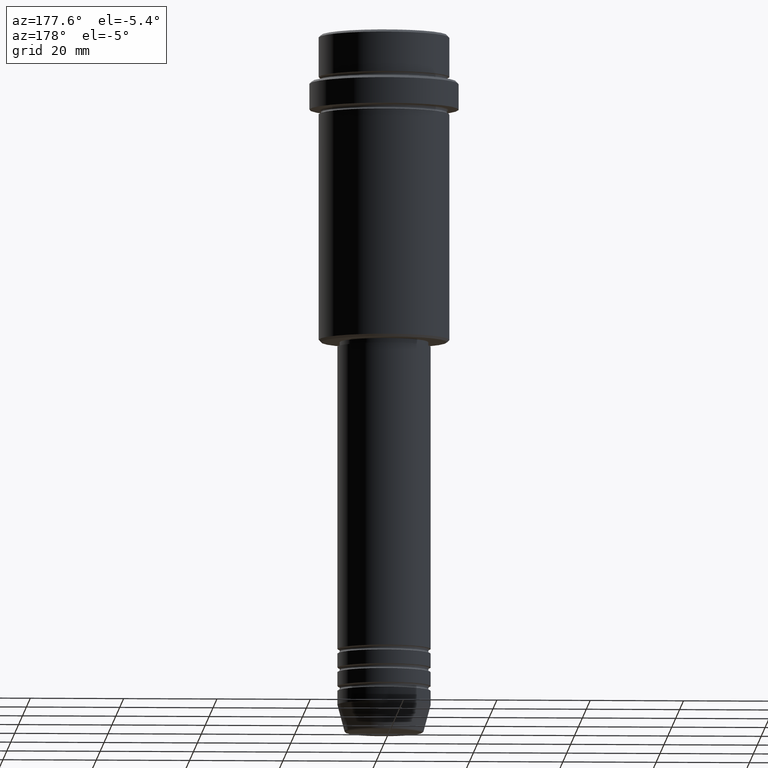
[diagram: clean part render]
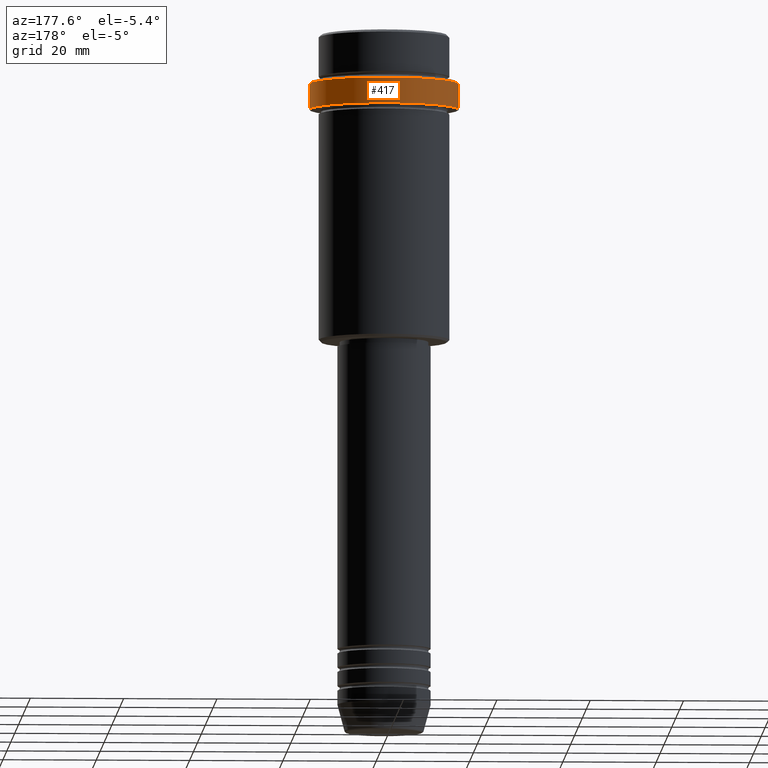
[diagram: same view with one face highlighted and labeled with its STEP entity id]
A machine part, auxiliary view. The second image highlights one B-rep face of the part: STEP entity #417.
In plain terms, the highlighted cylindrical surface (partial cylindrical patch) has radius 16 mm, axis along (-0, -0, 1).
Its self-contained STEP definition (entity closure, byte-faithful):
#19 = DIRECTION ( 'NONE',  ( -0.000000000000000000, -0.000000000000000000, 1.000000000000000000 ) ) ;
#61 = DIRECTION ( 'NONE',  ( 0.000000000000000000, 0.000000000000000000, -1.000000000000000000 ) ) ;
#87 = EDGE_CURVE ( 'NONE', #1394, #1410, #491, .T. ) ;
#125 = DIRECTION ( 'NONE',  ( 1.000000000000000000, 0.000000000000000000, 0.000000000000000000 ) ) ;
#138 = LINE ( 'NONE', #1326, #913 ) ;
#192 = AXIS2_PLACEMENT_3D ( 'NONE', #1132, #61, #608 ) ;
#208 = DIRECTION ( 'NONE',  ( -0.000000000000000000, -0.000000000000000000, 1.000000000000000000 ) ) ;
#215 = DIRECTION ( 'NONE',  ( 1.000000000000000000, 0.000000000000000000, 0.000000000000000000 ) ) ;
#231 = CARTESIAN_POINT ( 'NONE',  ( 15.99999999999998579, 0.000000000000000000, -10.49999999999997158 ) ) ;
#283 = EDGE_LOOP ( 'NONE', ( #1265, #621, #426, #395 ) ) ;
#313 = CYLINDRICAL_SURFACE ( 'NONE', #845, 15.99999999999998579 ) ;
#323 = VERTEX_POINT ( 'NONE', #1263 ) ;
#333 = CARTESIAN_POINT ( 'NONE',  ( 15.99999999999998579, 0.000000000000000000, -16.00000000000000000 ) ) ;
#388 = CARTESIAN_POINT ( 'NONE',  ( 0.000000000000000000, 0.000000000000000000, -16.00000000000000000 ) ) ;
#395 = ORIENTED_EDGE ( 'NONE', *, *, #87, .F. ) ;
#417 = ADVANCED_FACE ( 'NONE', ( #851 ), #313, .T. ) ;
#426 = ORIENTED_EDGE ( 'NONE', *, *, #576, .T. ) ;
#457 = EDGE_CURVE ( 'NONE', #558, #323, #138, .T. ) ;
#491 = LINE ( 'NONE', #711, #1001 ) ;
#541 = CIRCLE ( 'NONE', #813, 15.99999999999998579 ) ;
#558 = VERTEX_POINT ( 'NONE', #1358 ) ;
#576 = EDGE_CURVE ( 'NONE', #323, #1410, #737, .T. ) ;
#608 = DIRECTION ( 'NONE',  ( 1.000000000000000000, 0.000000000000000000, 0.000000000000000000 ) ) ;
#621 = ORIENTED_EDGE ( 'NONE', *, *, #457, .T. ) ;
#632 = EDGE_CURVE ( 'NONE', #1394, #558, #541, .T. ) ;
#711 = CARTESIAN_POINT ( 'NONE',  ( 15.99999999999998579, 0.000000000000000000, 0.000000000000000000 ) ) ;
#737 = CIRCLE ( 'NONE', #192, 15.99999999999998579 ) ;
#745 = CARTESIAN_POINT ( 'NONE',  ( 0.000000000000000000, 0.000000000000000000, 0.000000000000000000 ) ) ;
#813 = AXIS2_PLACEMENT_3D ( 'NONE', #388, #19, #125 ) ;
#845 = AXIS2_PLACEMENT_3D ( 'NONE', #745, #208, #215 ) ;
#851 = FACE_OUTER_BOUND ( 'NONE', #283, .T. ) ;
#901 = DIRECTION ( 'NONE',  ( -0.000000000000000000, -0.000000000000000000, 1.000000000000000000 ) ) ;
#913 = VECTOR ( 'NONE', #901, 1000.000000000000000 ) ;
#1001 = VECTOR ( 'NONE', #1230, 1000.000000000000000 ) ;
#1132 = CARTESIAN_POINT ( 'NONE',  ( 0.000000000000000000, 0.000000000000000000, -10.49999999999997158 ) ) ;
#1230 = DIRECTION ( 'NONE',  ( -0.000000000000000000, -0.000000000000000000, 1.000000000000000000 ) ) ;
#1263 = CARTESIAN_POINT ( 'NONE',  ( -15.99999999999998579, 1.959434878635763554E-15, -10.49999999999997158 ) ) ;
#1265 = ORIENTED_EDGE ( 'NONE', *, *, #632, .T. ) ;
#1326 = CARTESIAN_POINT ( 'NONE',  ( -15.99999999999998579, 1.959434878635763554E-15, 0.000000000000000000 ) ) ;
#1358 = CARTESIAN_POINT ( 'NONE',  ( -15.99999999999998579, 1.959434878635763554E-15, -16.00000000000000000 ) ) ;
#1394 = VERTEX_POINT ( 'NONE', #333 ) ;
#1410 = VERTEX_POINT ( 'NONE', #231 ) ;